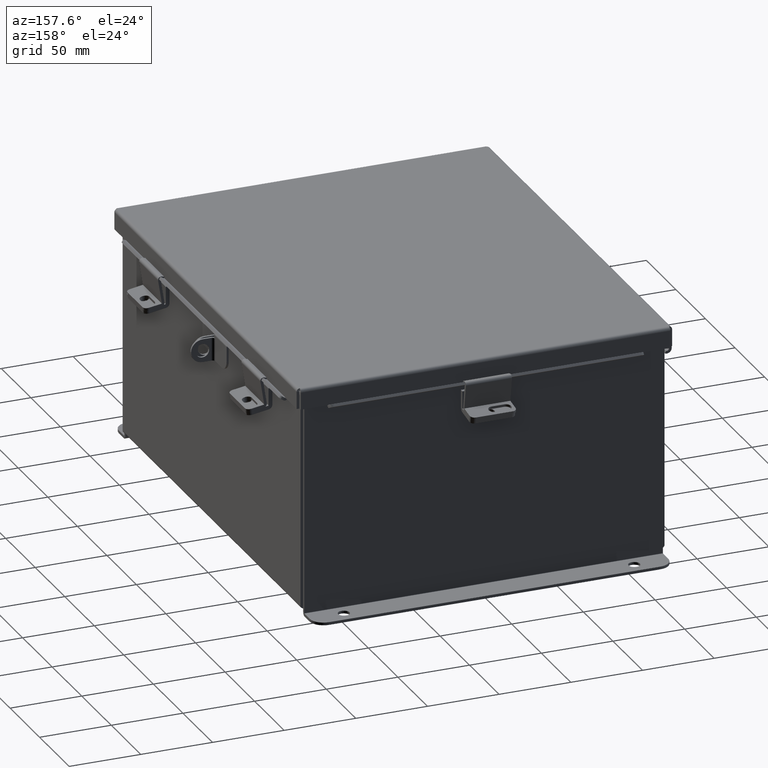
[diagram: clean part render]
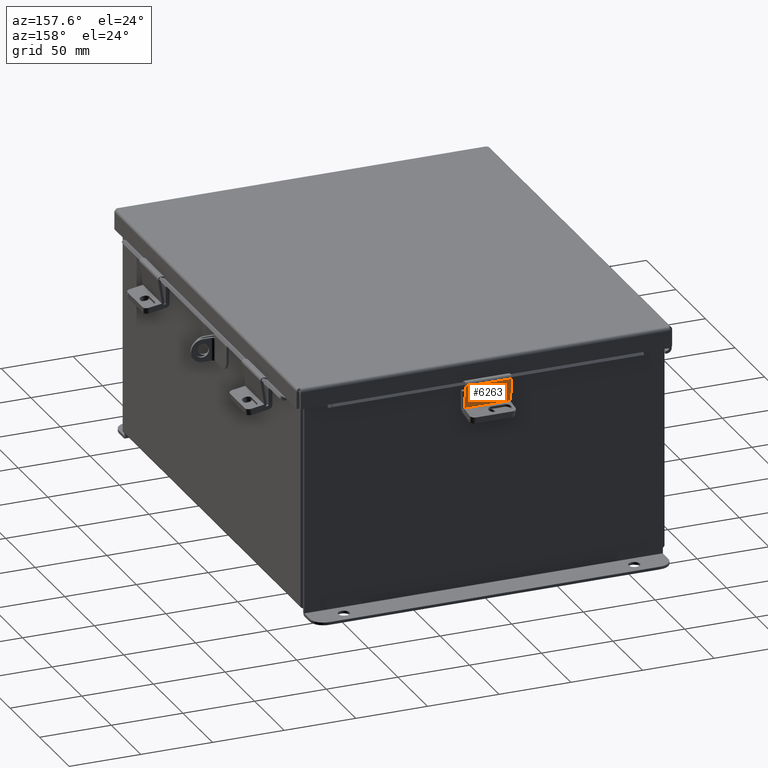
[diagram: same view with one face highlighted and labeled with its STEP entity id]
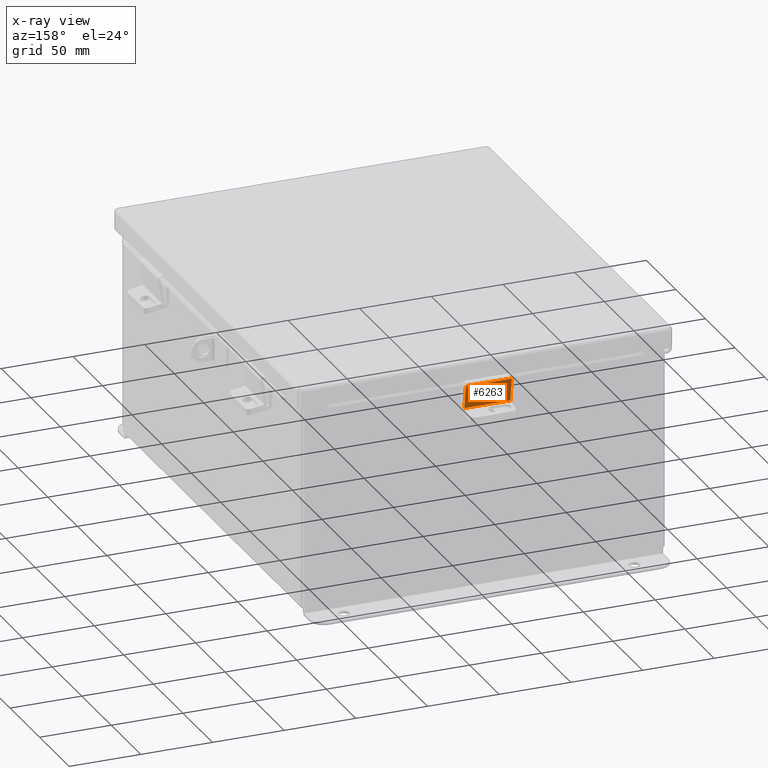
[diagram: x-ray of the same camera — body ghosted, the highlighted face saturated]
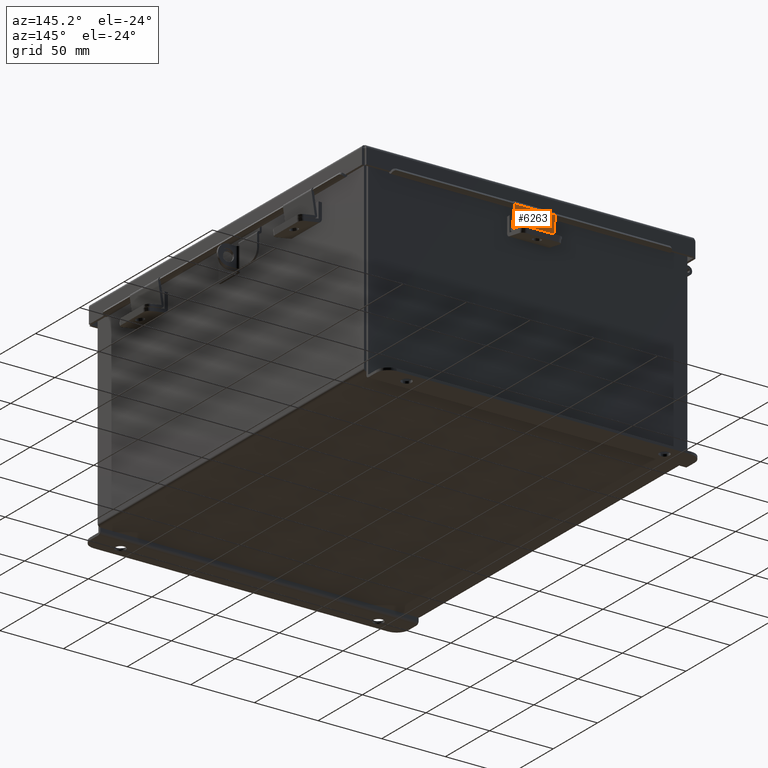
[diagram: same view with one face highlighted and labeled with its STEP entity id]
A machine part, auxiliary view. The second image highlights one B-rep face of the part: STEP entity #6263.
The next image is the same camera in x-ray: the body ghosted, the highlighted face saturated — about 0% of this face is hidden behind the body in this view.
A second angle (auxiliary view) of the same face is appended — the face is thin or edge-on in the first view.
In plain terms, the highlighted planar face has unit normal (-0, -0.9877, 0.1564).
Its self-contained STEP definition (entity closure, byte-faithful):
#1 = LINE ( 'NONE', #4316, #4101 ) ;
#536 = CARTESIAN_POINT ( 'NONE',  ( 0.6325000000000000600, 0.4175000000000001500, 0.0000000000000000000 ) ) ;
#1069 = LINE ( 'NONE', #15211, #11972 ) ;
#1588 = VECTOR ( 'NONE', #7353, 39.37007874015748100 ) ;
#1681 = EDGE_CURVE ( 'NONE', #4087, #15946, #1, .T. ) ;
#1864 = EDGE_CURVE ( 'NONE', #4087, #15604, #1069, .T. ) ;
#2168 = VECTOR ( 'NONE', #14822, 39.37007874015748100 ) ;
#3738 = PLANE ( 'NONE',  #16065 ) ;
#4087 = VERTEX_POINT ( 'NONE', #8730 ) ;
#4101 = VECTOR ( 'NONE', #7671, 39.37007874015748100 ) ;
#4305 = EDGE_LOOP ( 'NONE', ( #7726, #15600, #13208, #8708 ) ) ;
#4316 = CARTESIAN_POINT ( 'NONE',  ( 0.6325000000000000600, -0.3344999999999998500, -3.734948428837859800E-017 ) ) ;
#5367 = DIRECTION ( 'NONE',  ( 0.0000000000000000000, 1.000000000000000000, 0.0000000000000000000 ) ) ;
#5502 = VERTEX_POINT ( 'NONE', #9765 ) ;
#6263 = ADVANCED_FACE ( 'NONE', ( #12659 ), #3738, .F. ) ;
#7353 = DIRECTION ( 'NONE',  ( -0.0000000000000000000, -1.000000000000000000, -0.0000000000000000000 ) ) ;
#7671 = DIRECTION ( 'NONE',  ( -1.000000000000000000, 0.0000000000000000000, 0.0000000000000000000 ) ) ;
#7726 = ORIENTED_EDGE ( 'NONE', *, *, #12646, .T. ) ;
#8708 = ORIENTED_EDGE ( 'NONE', *, *, #1864, .T. ) ;
#8730 = CARTESIAN_POINT ( 'NONE',  ( 0.6325000000000000600, -0.3344999999999998500, -3.734948428837859800E-017 ) ) ;
#8942 = DIRECTION ( 'NONE',  ( 0.0000000000000000000, 0.0000000000000000000, -1.000000000000000000 ) ) ;
#9677 = LINE ( 'NONE', #15509, #1588 ) ;
#9765 = CARTESIAN_POINT ( 'NONE',  ( -0.6325000000000000600, 0.3243453803252444000, 0.0000000000000000000 ) ) ;
#10388 = EDGE_CURVE ( 'NONE', #5502, #15946, #9677, .T. ) ;
#10703 = CARTESIAN_POINT ( 'NONE',  ( 0.6325000000000000600, 0.3243453803252444000, -1.024442997624098700E-016 ) ) ;
#11700 = CARTESIAN_POINT ( 'NONE',  ( -0.6325000000000000600, -0.3344999999999998500, -3.734948428837859800E-017 ) ) ;
#11972 = VECTOR ( 'NONE', #5367, 39.37007874015748100 ) ;
#12113 = CARTESIAN_POINT ( 'NONE',  ( 0.6324999999999998400, 0.3243453803252444000, -1.024442997624098700E-016 ) ) ;
#12646 = EDGE_CURVE ( 'NONE', #15604, #5502, #13444, .T. ) ;
#12659 = FACE_OUTER_BOUND ( 'NONE', #4305, .T. ) ;
#13208 = ORIENTED_EDGE ( 'NONE', *, *, #1681, .F. ) ;
#13444 = LINE ( 'NONE', #10703, #2168 ) ;
#14822 = DIRECTION ( 'NONE',  ( -1.000000000000000000, -0.0000000000000000000, -0.0000000000000000000 ) ) ;
#15211 = CARTESIAN_POINT ( 'NONE',  ( 0.6325000000000000600, -0.4174999999999998700, 0.0000000000000000000 ) ) ;
#15473 = DIRECTION ( 'NONE',  ( -1.000000000000000000, 0.0000000000000000000, -0.0000000000000000000 ) ) ;
#15509 = CARTESIAN_POINT ( 'NONE',  ( -0.6325000000000000600, -0.4174999999999998700, 0.0000000000000000000 ) ) ;
#15600 = ORIENTED_EDGE ( 'NONE', *, *, #10388, .T. ) ;
#15604 = VERTEX_POINT ( 'NONE', #12113 ) ;
#15946 = VERTEX_POINT ( 'NONE', #11700 ) ;
#16065 = AXIS2_PLACEMENT_3D ( 'NONE', #536, #8942, #15473 ) ;